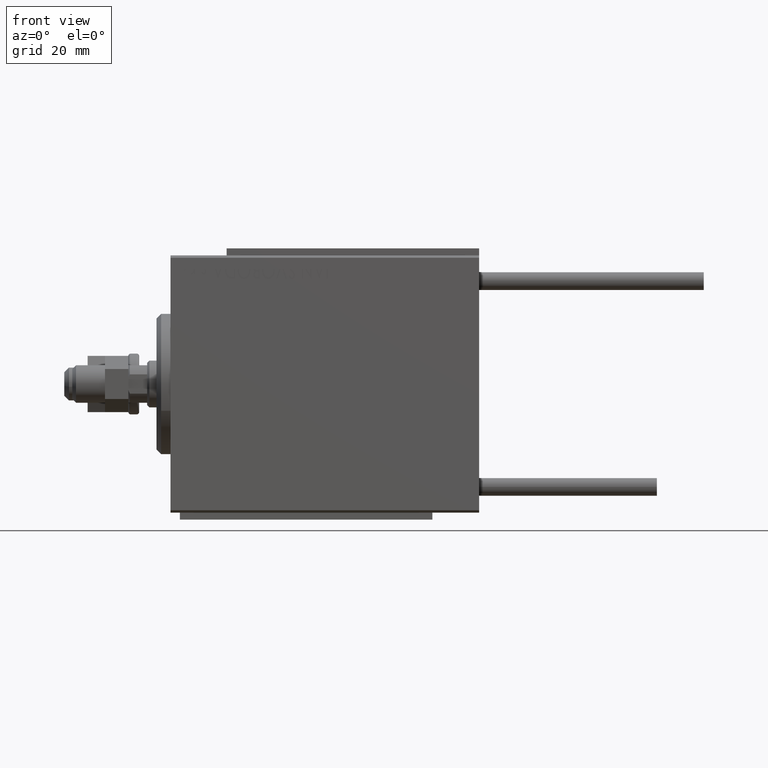
[diagram: clean part render]
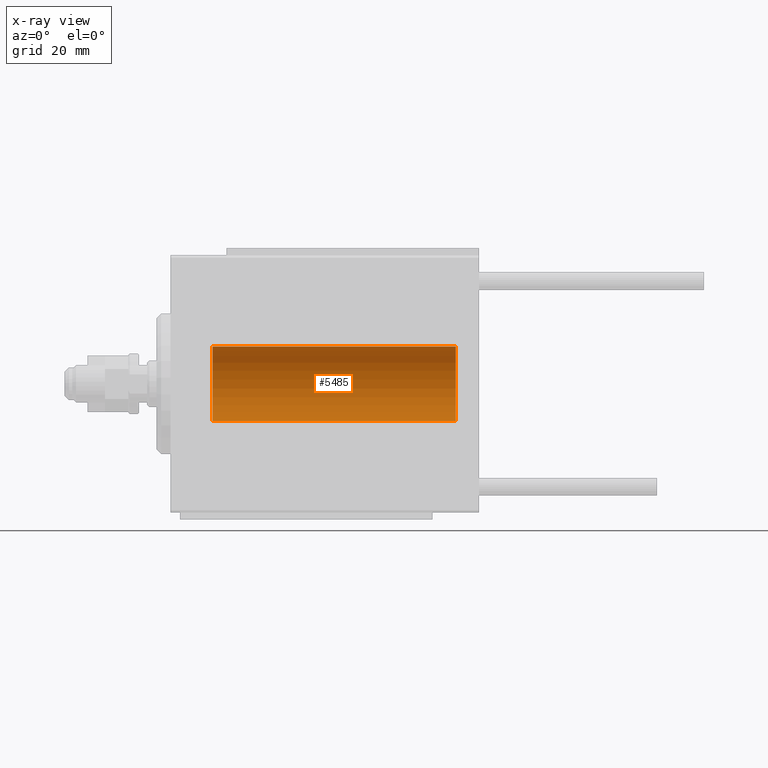
[diagram: x-ray — body ghosted, one internal face saturated and labeled with its STEP entity id]
A machine part, front view, then the same camera in x-ray: the body is ghosted and one INTERNAL B-rep face — a face not visible from any outside direction — is saturated and labeled: STEP entity #5485.
In plain terms, the highlighted cylindrical surface (partial cylindrical patch) has radius 8 mm, axis along (-1, -0, -0).
Its self-contained STEP definition (entity closure, byte-faithful):
#745 = VERTEX_POINT ( 'NONE', #21719 ) ;
#1046 = VECTOR ( 'NONE', #40836, 1000.000000000000000 ) ;
#1404 = CARTESIAN_POINT ( 'NONE',  ( 54.25000000000002132, 0.1654536524217949667, -7.999999999999998224 ) ) ;
#1466 = CIRCLE ( 'NONE', #27728, 7.999999999999998224 ) ;
#1901 = CARTESIAN_POINT ( 'NONE',  ( 56.70976650520091766, 0.3250523954932728055, -7.993796610540221614 ) ) ;
#2994 = CARTESIAN_POINT ( 'NONE',  ( 21.68608944587722931, 0.4029817482954560215, -7.990203133273719338 ) ) ;
#3045 = CYLINDRICAL_SURFACE ( 'NONE', #8247, 7.999999999999998224 ) ;
#3248 = CARTESIAN_POINT ( 'NONE',  ( 21.70976650520091766, 0.3250523954932728055, -7.993796610540221614 ) ) ;
#3490 = CARTESIAN_POINT ( 'NONE',  ( 20.17150130922778573, 1.217000984963200638, -7.907141142849006599 ) ) ;
#3922 = EDGE_CURVE ( 'NONE', #41839, #745, #21331, .T. ) ;
#4536 = AXIS2_PLACEMENT_3D ( 'NONE', #10372, #18093, #49443 ) ;
#5485 = ADVANCED_FACE ( 'NONE', ( #34125 ), #3045, .F. ) ;
#5525 = CARTESIAN_POINT ( 'NONE',  ( 55.17150130922777151, 1.217000984963198862, -7.907141142849008375 ) ) ;
#6013 = CARTESIAN_POINT ( 'NONE',  ( 56.74999999999998579, 0.08164616652084630277, -7.999999999999996447 ) ) ;
#6490 = DIRECTION ( 'NONE',  ( -1.000000000000000000, -0.000000000000000000, -0.000000000000000000 ) ) ;
#7277 = VERTEX_POINT ( 'NONE', #32944 ) ;
#7358 = CARTESIAN_POINT ( 'NONE',  ( 19.28266791658456825, 0.3277916934117462988, -7.994719249713585718 ) ) ;
#7439 = EDGE_CURVE ( 'NONE', #36630, #28270, #26763, .T. ) ;
#8247 = AXIS2_PLACEMENT_3D ( 'NONE', #10740, #49831, #14600 ) ;
#8424 = ORIENTED_EDGE ( 'NONE', *, *, #28334, .T. ) ;
#10372 = CARTESIAN_POINT ( 'NONE',  ( 9.000000000000001776, 0.000000000000000000, 0.000000000000000000 ) ) ;
#10692 = CARTESIAN_POINT ( 'NONE',  ( 20.82459038316880040, 1.209888574283867646, -7.907997942808293601 ) ) ;
#10740 = CARTESIAN_POINT ( 'NONE',  ( 61.00000000000000000, 0.000000000000000000, 0.000000000000000000 ) ) ;
#11078 = DIRECTION ( 'NONE',  ( -1.000000000000000000, -0.000000000000000000, -0.000000000000000000 ) ) ;
#13483 = CARTESIAN_POINT ( 'NONE',  ( 55.90257413385906915, 1.186236229830388789, -7.911627449023368008 ) ) ;
#13865 = DIRECTION ( 'NONE',  ( -1.000000000000000000, -0.000000000000000000, -0.000000000000000000 ) ) ;
#14285 = CARTESIAN_POINT ( 'NONE',  ( 21.59204967621043991, 0.6298709050361922523, -7.976604806854521001 ) ) ;
#14551 = CARTESIAN_POINT ( 'NONE',  ( 20.90257413385907270, 1.186236229830387900, -7.911627449023364456 ) ) ;
#14600 = DIRECTION ( 'NONE',  ( 0.000000000000000000, 0.000000000000000000, 1.000000000000000000 ) ) ;
#14865 = ORIENTED_EDGE ( 'NONE', *, *, #27839, .T. ) ;
#15309 = CARTESIAN_POINT ( 'NONE',  ( 19.87074834296262438, 1.092266057037466265, -7.925334523600930936 ) ) ;
#15672 = VERTEX_POINT ( 'NONE', #32735 ) ;
#16497 = ORIENTED_EDGE ( 'NONE', *, *, #16548, .F. ) ;
#16548 = EDGE_CURVE ( 'NONE', #29868, #15672, #1466, .T. ) ;
#16570 = DIRECTION ( 'NONE',  ( 0.000000000000000000, 0.000000000000000000, 1.000000000000000000 ) ) ;
#17081 = CARTESIAN_POINT ( 'NONE',  ( 54.28266791658456469, 0.3277916934117449665, -7.994719249713587494 ) ) ;
#17331 = CARTESIAN_POINT ( 'NONE',  ( 55.82459038316878264, 1.209888574283865648, -7.907997942808291825 ) ) ;
#17970 = LINE ( 'NONE', #41603, #1046 ) ;
#18093 = DIRECTION ( 'NONE',  ( -1.000000000000000000, 0.000000000000000000, 0.000000000000000000 ) ) ;
#18275 = CARTESIAN_POINT ( 'NONE',  ( 61.00000000000000000, 9.797174393178821713E-16, -7.999999999999998224 ) ) ;
#18892 = VECTOR ( 'NONE', #13865, 1000.000000000000000 ) ;
#18992 = VECTOR ( 'NONE', #11078, 1000.000000000000000 ) ;
#19164 = CARTESIAN_POINT ( 'NONE',  ( 21.75000000000000355, 9.797173987961664550E-16, -7.999999999999998224 ) ) ;
#21195 = CARTESIAN_POINT ( 'NONE',  ( 55.33619145091235936, 1.249938428426571102, -7.901750054830717573 ) ) ;
#21331 = LINE ( 'NONE', #29799, #18892 ) ;
#21443 = CARTESIAN_POINT ( 'NONE',  ( 56.26739091610630084, 1.000368629246203511, -7.938072339095204377 ) ) ;
#21697 = CARTESIAN_POINT ( 'NONE',  ( 56.74999999999999289, 9.797173987961664550E-16, -7.999999999999998224 ) ) ;
#21719 = CARTESIAN_POINT ( 'NONE',  ( 21.75000000000000355, 9.797173987961664550E-16, -7.999999999999998224 ) ) ;
#21888 = CARTESIAN_POINT ( 'NONE',  ( 54.25000000000000711, -7.658604007271468488E-15, -7.999999999999998224 ) ) ;
#21982 = CARTESIAN_POINT ( 'NONE',  ( 9.000000000000001776, 0.000000000000000000, 7.999999999999998224 ) ) ;
#22018 = CARTESIAN_POINT ( 'NONE',  ( 9.000000000000001776, 9.797174393178821713E-16, -7.999999999999998224 ) ) ;
#22532 = CARTESIAN_POINT ( 'NONE',  ( 20.58119849493555265, 1.250030652953401766, -7.901735465557269578 ) ) ;
#23551 = B_SPLINE_CURVE_WITH_KNOTS ( 'NONE', 3,
 ( #50536, #42567, #7358, #30736, #46423, #42313, #15309, #3490, #34336, #22532, #30987, #10692, #14551, #45911, #38943, #38186, #14285, #2994, #3248, #45655, #46673, #19164 ),
 .UNSPECIFIED., .F., .F.,
 ( 4, 2, 2, 2, 2, 2, 2, 2, 2, 2, 4 ),
 ( 3.968077459664569325E-19, 0.0004892585179631270438, 0.0009785170359262536539, 0.001467775553889380264, 0.001957034071852506874, 0.002201663330834064975, 0.002446292589815623076, 0.002935551107778729737, 0.003424809625741836398, 0.003669438884723391896, 0.003914068143704946962 ),
 .UNSPECIFIED. ) ;
#23920 = ORIENTED_EDGE ( 'NONE', *, *, #3922, .F. ) ;
#24965 = VERTEX_POINT ( 'NONE', #21982 ) ;
#25577 = CARTESIAN_POINT ( 'NONE',  ( 56.50031982237067041, 0.7674545364220043409, -7.963965305651047544 ) ) ;
#25770 = CARTESIAN_POINT ( 'NONE',  ( 61.00000000000000000, 9.797174393178821713E-16, -7.999999999999998224 ) ) ;
#26542 = ORIENTED_EDGE ( 'NONE', *, *, #35586, .T. ) ;
#26763 = LINE ( 'NONE', #18275, #18992 ) ;
#27728 = AXIS2_PLACEMENT_3D ( 'NONE', #32494, #48184, #16570 ) ;
#27839 = EDGE_CURVE ( 'NONE', #29868, #24965, #17970, .T. ) ;
#28270 = VERTEX_POINT ( 'NONE', #22018 ) ;
#28334 = EDGE_CURVE ( 'NONE', #36630, #745, #23551, .T. ) ;
#28914 = ORIENTED_EDGE ( 'NONE', *, *, #7439, .F. ) ;
#29157 = CARTESIAN_POINT ( 'NONE',  ( 56.12982270639372473, 1.092113850918998263, -7.925358570881162024 ) ) ;
#29799 = CARTESIAN_POINT ( 'NONE',  ( 61.00000000000000000, 9.797174393178821713E-16, -7.999999999999998224 ) ) ;
#29868 = VERTEX_POINT ( 'NONE', #34254 ) ;
#30736 = CARTESIAN_POINT ( 'NONE',  ( 19.40826977845303247, 0.6304521543648577975, -7.976560245937304394 ) ) ;
#30908 = ORIENTED_EDGE ( 'NONE', *, *, #36267, .T. ) ;
#30987 = CARTESIAN_POINT ( 'NONE',  ( 20.66417091690311381, 1.241868426634442191, -7.903038949453011774 ) ) ;
#32494 = CARTESIAN_POINT ( 'NONE',  ( 61.00000000000000000, 0.000000000000000000, 0.000000000000000000 ) ) ;
#32735 = CARTESIAN_POINT ( 'NONE',  ( 61.00000000000000000, 9.797174393178821713E-16, -7.999999999999998224 ) ) ;
#32756 = CARTESIAN_POINT ( 'NONE',  ( 54.40826977845300405, 0.6304521543648562432, -7.976560245937302618 ) ) ;
#32944 = CARTESIAN_POINT ( 'NONE',  ( 56.74999999999999289, 9.797173987961664550E-16, -7.999999999999998224 ) ) ;
#33226 = ORIENTED_EDGE ( 'NONE', *, *, #47124, .F. ) ;
#33261 = CARTESIAN_POINT ( 'NONE',  ( 56.74181525892406341, 0.1645871186493932936, -7.998709545350108918 ) ) ;
#34125 = FACE_OUTER_BOUND ( 'NONE', #41713, .T. ) ;
#34254 = CARTESIAN_POINT ( 'NONE',  ( 61.00000000000000000, 0.000000000000000000, 7.999999999999998224 ) ) ;
#34336 = CARTESIAN_POINT ( 'NONE',  ( 20.33619145091235936, 1.249938428426572656, -7.901750054830718462 ) ) ;
#35310 = B_SPLINE_CURVE_WITH_KNOTS ( 'NONE', 3,
 ( #37367, #1404, #17081, #32756, #48452, #44582, #40720, #5525, #21195, #36865, #45094, #17331, #13483, #29157, #21443, #25577, #41223, #44840, #1901, #33261, #6013, #21697 ),
 .UNSPECIFIED., .F., .F.,
 ( 4, 2, 2, 2, 2, 2, 2, 2, 2, 2, 4 ),
 ( 6.559457490098071143E-19, 0.0004892585179631266101, 0.0009785170359262523529, 0.001467775553889378313, 0.001957034071852504272, 0.002201663330834067577, 0.002446292589815630015, 0.002935551107778736676, 0.003424809625741843336, 0.003669438884723392330, 0.003914068143704941757 ),
 .UNSPECIFIED. ) ;
#35586 = EDGE_CURVE ( 'NONE', #24965, #28270, #48857, .T. ) ;
#36267 = EDGE_CURVE ( 'NONE', #41839, #7277, #35310, .T. ) ;
#36630 = VERTEX_POINT ( 'NONE', #44071 ) ;
#36865 = CARTESIAN_POINT ( 'NONE',  ( 55.58119849493555620, 1.250030652953400434, -7.901735465557267801 ) ) ;
#37367 = CARTESIAN_POINT ( 'NONE',  ( 54.25000000000000711, -7.658604007271468488E-15, -7.999999999999998224 ) ) ;
#38186 = CARTESIAN_POINT ( 'NONE',  ( 21.50031982237066330, 0.7674545364220048960, -7.963965305651045767 ) ) ;
#38943 = CARTESIAN_POINT ( 'NONE',  ( 21.26739091610630084, 1.000368629246204399, -7.938072339095202601 ) ) ;
#39840 = VECTOR ( 'NONE', #6490, 1000.000000000000000 ) ;
#40720 = CARTESIAN_POINT ( 'NONE',  ( 54.87074834296262793, 1.092266057037465599, -7.925334523600930936 ) ) ;
#40836 = DIRECTION ( 'NONE',  ( -1.000000000000000000, -0.000000000000000000, -0.000000000000000000 ) ) ;
#41223 = CARTESIAN_POINT ( 'NONE',  ( 56.59204967621043636, 0.6298709050361933626, -7.976604806854519225 ) ) ;
#41603 = CARTESIAN_POINT ( 'NONE',  ( 61.00000000000000000, 0.000000000000000000, 7.999999999999998224 ) ) ;
#41713 = EDGE_LOOP ( 'NONE', ( #33226, #16497, #14865, #26542, #28914, #8424, #23920, #30908 ) ) ;
#41839 = VERTEX_POINT ( 'NONE', #21888 ) ;
#42313 = CARTESIAN_POINT ( 'NONE',  ( 19.73146701955095139, 0.9991832710565804465, -7.938201675418735448 ) ) ;
#42567 = CARTESIAN_POINT ( 'NONE',  ( 19.25000000000000355, 0.1654536524217967430, -8.000000000000000000 ) ) ;
#44071 = CARTESIAN_POINT ( 'NONE',  ( 19.25000000000000711, -6.254940236236577124E-15, -7.999999999999998224 ) ) ;
#44582 = CARTESIAN_POINT ( 'NONE',  ( 54.73146701955094784, 0.9991832710565817788, -7.938201675418737224 ) ) ;
#44840 = CARTESIAN_POINT ( 'NONE',  ( 56.68608944587721510, 0.4029817482954575758, -7.990203133273719338 ) ) ;
#45094 = CARTESIAN_POINT ( 'NONE',  ( 55.66417091690311025, 1.241868426634440636, -7.903038949453011774 ) ) ;
#45655 = CARTESIAN_POINT ( 'NONE',  ( 21.74181525892406697, 0.1645871186493925442, -7.998709545350108918 ) ) ;
#45911 = CARTESIAN_POINT ( 'NONE',  ( 21.12982270639373894, 1.092113850918996709, -7.925358570881165576 ) ) ;
#46063 = LINE ( 'NONE', #25770, #39840 ) ;
#46423 = CARTESIAN_POINT ( 'NONE',  ( 19.50115498801908842, 0.7689725568822820545, -7.963798983873345172 ) ) ;
#46673 = CARTESIAN_POINT ( 'NONE',  ( 21.75000000000000355, 0.08164616652084660808, -8.000000000000000000 ) ) ;
#47124 = EDGE_CURVE ( 'NONE', #15672, #7277, #46063, .T. ) ;
#48184 = DIRECTION ( 'NONE',  ( -1.000000000000000000, 0.000000000000000000, 0.000000000000000000 ) ) ;
#48452 = CARTESIAN_POINT ( 'NONE',  ( 54.50115498801909553, 0.7689725568822833868, -7.963798983873343396 ) ) ;
#48857 = CIRCLE ( 'NONE', #4536, 7.999999999999998224 ) ;
#49443 = DIRECTION ( 'NONE',  ( 0.000000000000000000, 0.000000000000000000, 1.000000000000000000 ) ) ;
#49831 = DIRECTION ( 'NONE',  ( -1.000000000000000000, -0.000000000000000000, -0.000000000000000000 ) ) ;
#50536 = CARTESIAN_POINT ( 'NONE',  ( 19.25000000000000711, -6.254940236236577124E-15, -7.999999999999998224 ) ) ;